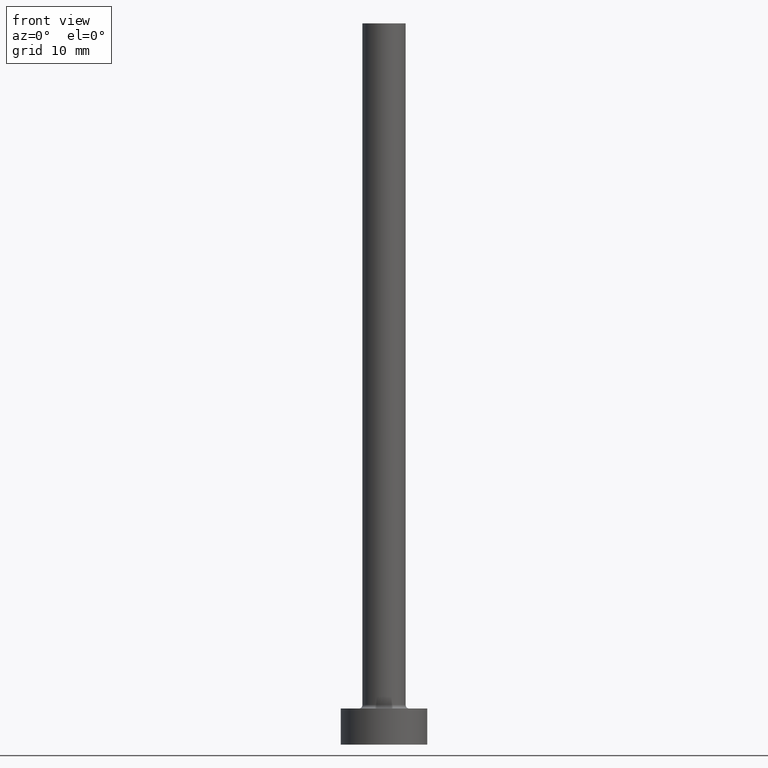
[diagram: clean part render]
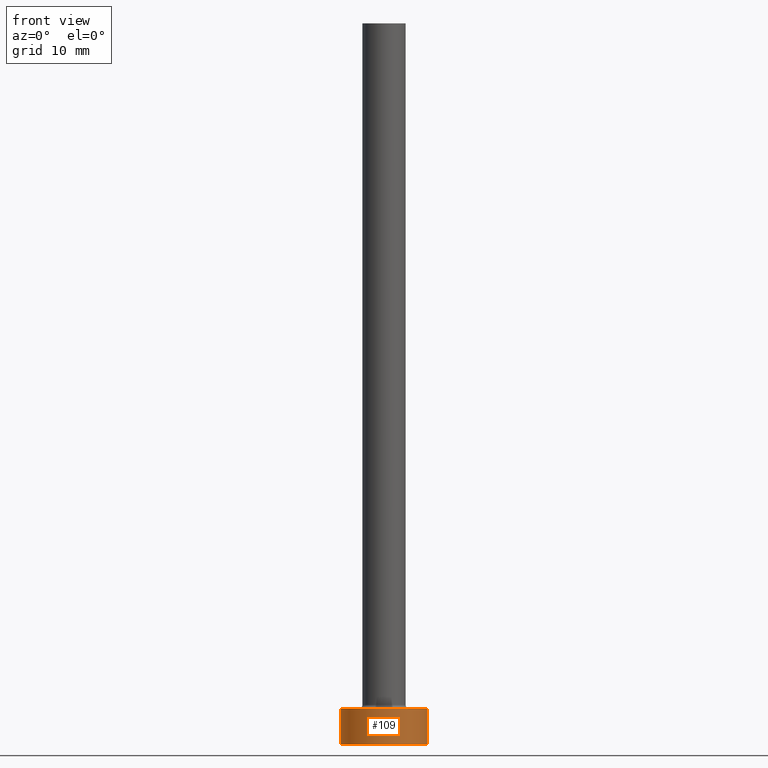
[diagram: same view with one face highlighted and labeled with its STEP entity id]
A machine part, front view. The second image highlights one B-rep face of the part: STEP entity #109.
In plain terms, the highlighted cylindrical surface (partial cylindrical patch) has radius 6 mm, axis along (-0, -0, -1).
Its self-contained STEP definition (entity closure, byte-faithful):
#5 = CIRCLE ( 'NONE', #458, 6.000000000000000888 ) ;
#33 = EDGE_CURVE ( 'NONE', #360, #375, #194, .T. ) ;
#38 = DIRECTION ( 'NONE',  ( 1.000000000000000000, 0.000000000000000000, 0.000000000000000000 ) ) ;
#42 = DIRECTION ( 'NONE',  ( 0.000000000000000000, 0.000000000000000000, 1.000000000000000000 ) ) ;
#61 = CARTESIAN_POINT ( 'NONE',  ( 6.000000000000000888, 7.347880794884120722E-16, 5.000000000000000000 ) ) ;
#77 = DIRECTION ( 'NONE',  ( 1.000000000000000000, 0.000000000000000000, 0.000000000000000000 ) ) ;
#94 = CARTESIAN_POINT ( 'NONE',  ( -6.000000000000000888, 0.000000000000000000, 0.000000000000000000 ) ) ;
#96 = CARTESIAN_POINT ( 'NONE',  ( -6.000000000000000888, 0.000000000000000000, 5.000000000000000000 ) ) ;
#97 = FACE_OUTER_BOUND ( 'NONE', #366, .T. ) ;
#109 = ADVANCED_FACE ( 'NONE', ( #97 ), #176, .T. ) ;
#120 = DIRECTION ( 'NONE',  ( -0.000000000000000000, -0.000000000000000000, -1.000000000000000000 ) ) ;
#132 = CARTESIAN_POINT ( 'NONE',  ( 0.000000000000000000, 0.000000000000000000, 5.000000000000000000 ) ) ;
#176 = CYLINDRICAL_SURFACE ( 'NONE', #343, 6.000000000000000888 ) ;
#180 = CARTESIAN_POINT ( 'NONE',  ( 6.000000000000000888, 7.347880794884120722E-16, 0.000000000000000000 ) ) ;
#192 = ORIENTED_EDGE ( 'NONE', *, *, #262, .F. ) ;
#194 = LINE ( 'NONE', #282, #225 ) ;
#218 = VECTOR ( 'NONE', #413, 1000.000000000000000 ) ;
#225 = VECTOR ( 'NONE', #120, 1000.000000000000000 ) ;
#227 = CARTESIAN_POINT ( 'NONE',  ( 0.000000000000000000, 0.000000000000000000, 5.000000000000000000 ) ) ;
#243 = LINE ( 'NONE', #344, #218 ) ;
#253 = ORIENTED_EDGE ( 'NONE', *, *, #33, .T. ) ;
#262 = EDGE_CURVE ( 'NONE', #367, #397, #243, .T. ) ;
#264 = DIRECTION ( 'NONE',  ( 0.000000000000000000, 0.000000000000000000, 1.000000000000000000 ) ) ;
#282 = CARTESIAN_POINT ( 'NONE',  ( -6.000000000000000888, 0.000000000000000000, 5.000000000000000000 ) ) ;
#295 = CARTESIAN_POINT ( 'NONE',  ( 0.000000000000000000, 0.000000000000000000, 0.000000000000000000 ) ) ;
#315 = AXIS2_PLACEMENT_3D ( 'NONE', #295, #264, #77 ) ;
#322 = ORIENTED_EDGE ( 'NONE', *, *, #420, .F. ) ;
#331 = ORIENTED_EDGE ( 'NONE', *, *, #392, .T. ) ;
#343 = AXIS2_PLACEMENT_3D ( 'NONE', #132, #388, #460 ) ;
#344 = CARTESIAN_POINT ( 'NONE',  ( 6.000000000000000888, 7.347880794884120722E-16, 5.000000000000000000 ) ) ;
#360 = VERTEX_POINT ( 'NONE', #96 ) ;
#363 = CIRCLE ( 'NONE', #315, 6.000000000000000888 ) ;
#366 = EDGE_LOOP ( 'NONE', ( #192, #322, #253, #331 ) ) ;
#367 = VERTEX_POINT ( 'NONE', #61 ) ;
#375 = VERTEX_POINT ( 'NONE', #94 ) ;
#388 = DIRECTION ( 'NONE',  ( -0.000000000000000000, -0.000000000000000000, -1.000000000000000000 ) ) ;
#392 = EDGE_CURVE ( 'NONE', #375, #397, #363, .T. ) ;
#397 = VERTEX_POINT ( 'NONE', #180 ) ;
#413 = DIRECTION ( 'NONE',  ( -0.000000000000000000, -0.000000000000000000, -1.000000000000000000 ) ) ;
#420 = EDGE_CURVE ( 'NONE', #360, #367, #5, .T. ) ;
#458 = AXIS2_PLACEMENT_3D ( 'NONE', #227, #42, #38 ) ;
#460 = DIRECTION ( 'NONE',  ( -1.000000000000000000, 0.000000000000000000, 0.000000000000000000 ) ) ;